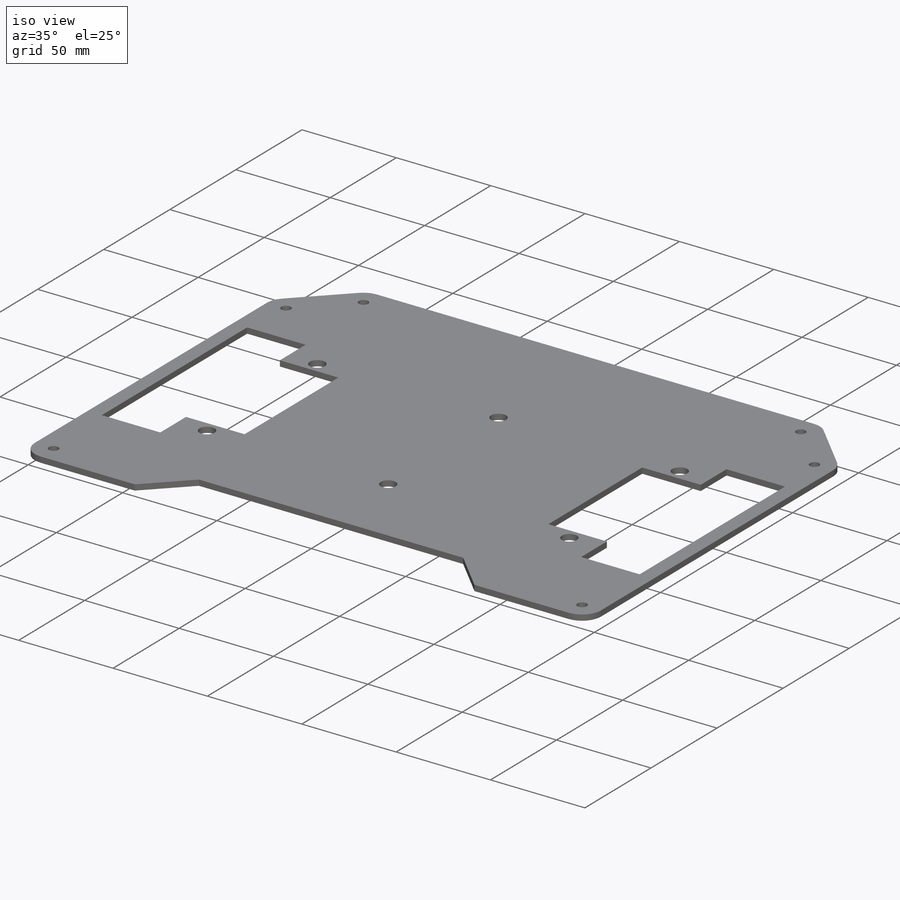
[diagram: iso view]
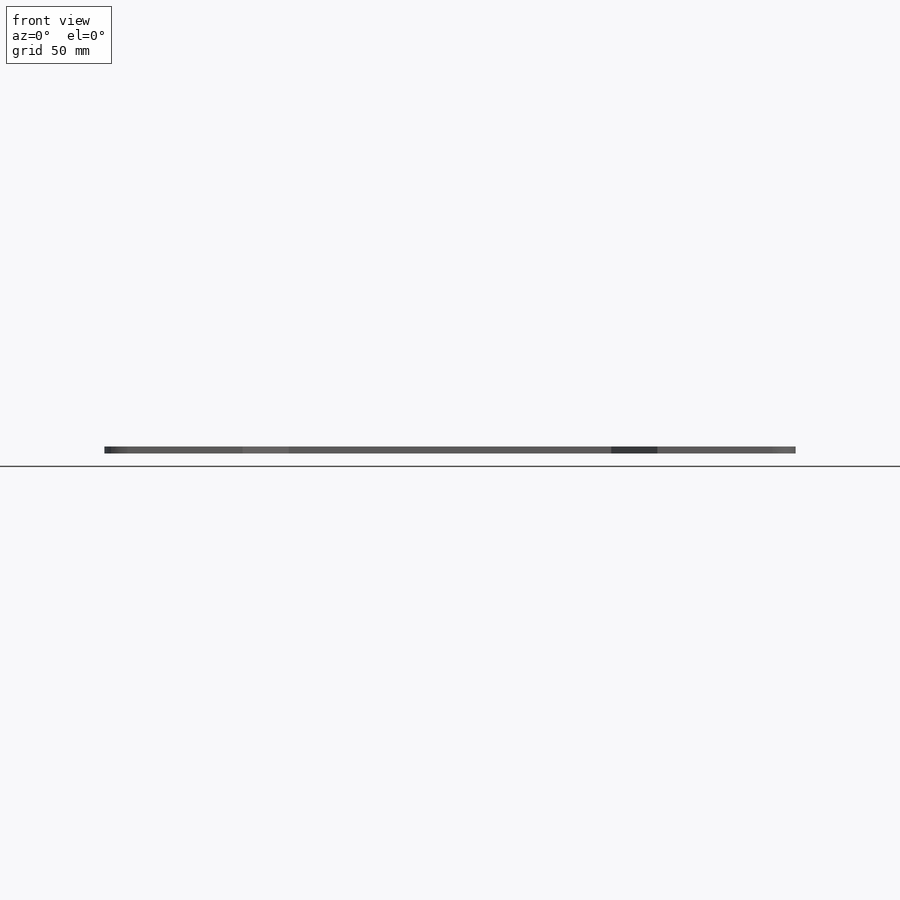
[diagram: front view]
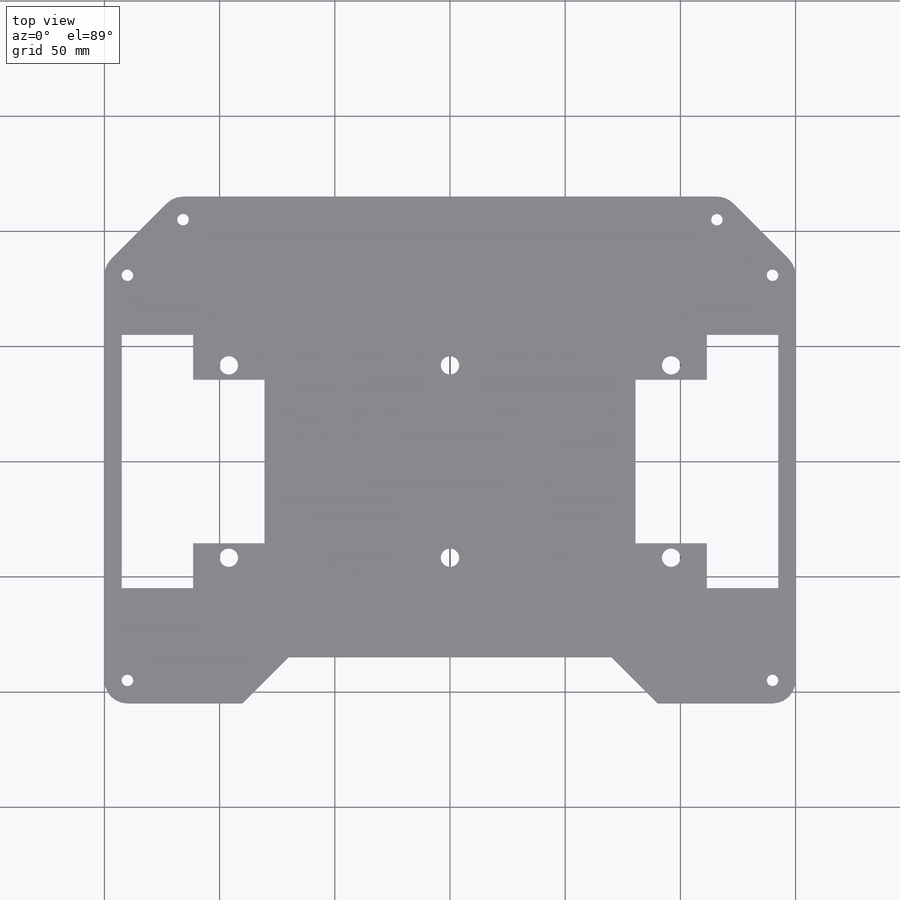
[diagram: top view]
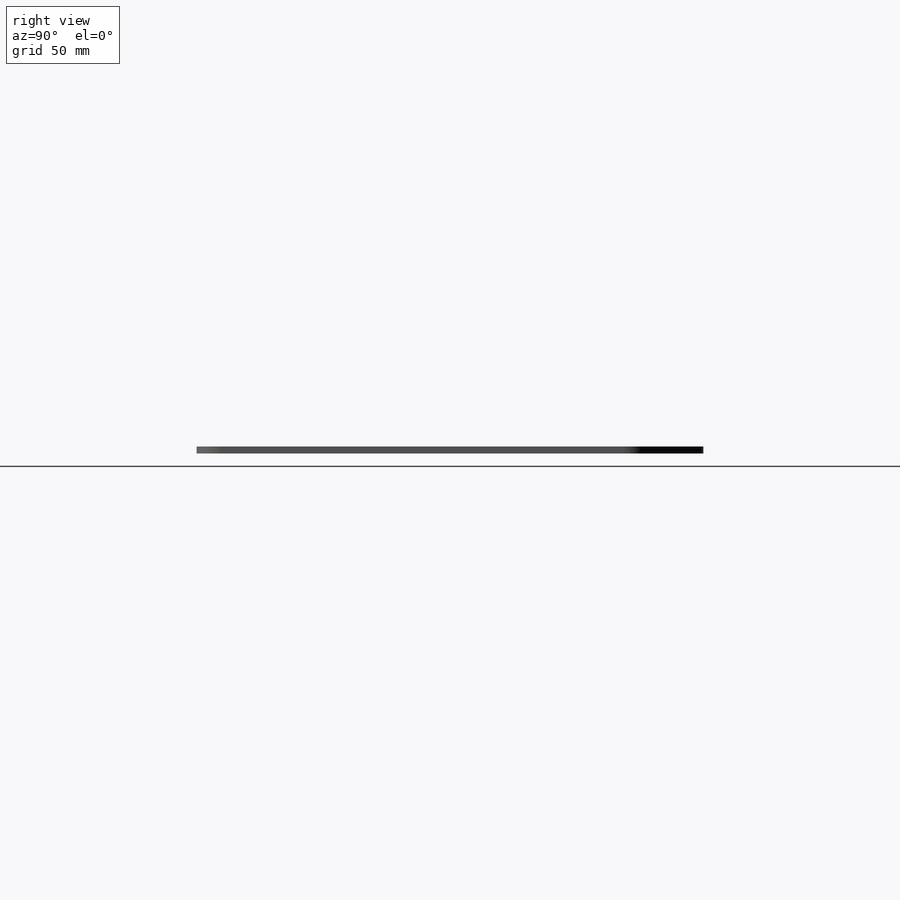
[diagram: right view]
SOLIDWORKS PART (.sldprt)
format: sldprt  version: not decoded by parser v0  size: 440,832 bytes
history: native  units: mm
features: plane x3, sketch x3, cut_extrude x2, material x1, extrude x1, fillet x1 (+9 scaffold rows collapsed)
feature tree (20):
  scaffold x9  (default folders/planes/origin — collapsed)
  material  "Material <not specified>"
  plane  "Face"
  plane  "Dessus"
  plane  "Droite"
  sketch  "Esquisse1"  dims[c1.D12=8.0mm c1.D1=295.0mm c1.D2=~32.22588mm c2.D2=45.0deg c2.D3=250.0mm c2.D4=110.0mm c2.D5=31.0mm c2.D6=71.0mm c2.D7=282.0mm c2.D8=45.0mm c2.D9=40.0mm c2.D10=40.0mm c2.D11=300.0mm c3.D7=161.0mm c3.D8=285.0mm c3.D2=50.0mm c3.D3=~87.650094mm c4.D3=45.0deg c4.D9=30.0mm c4.D10=220.0mm c4.D13=96.0mm c4.D14=41.75mm]
  extrude  "Extrusion1"  Depth=3mm
  fillet  "Congé2"  Radius=10mm
  sketch  "Esquisse3"  dims[c1.D2=5.0mm c1.D1=5.0mm c1.D5=~14.16011mm c2.D1=10.0mm c2.D2=10.0mm c2.D3=5.0mm c3.D1=10.0mm c3.D4=5.0mm c4.D1=~84.852814mm c5.D1=~178.865953deg c6.D1=5.0mm]
  cut_extrude  "Extrusion2"  [1 undecoded]
  sketch  "Esquisse4"  dims[c1.D1=~30.35201mm c2.D1=45.0deg c2.D2=70.0mm c2.D3=20.0mm]
  cut_extrude  "Extrusion3"  [1 undecoded]
decode coverage: 5 of 7 modeling features carry decoded parameters
note: ~ marks probable driven/reference dimensions
note: 2 parameter values undecoded
note: suppression state not decoded; provenance and decode notes live in map.json
